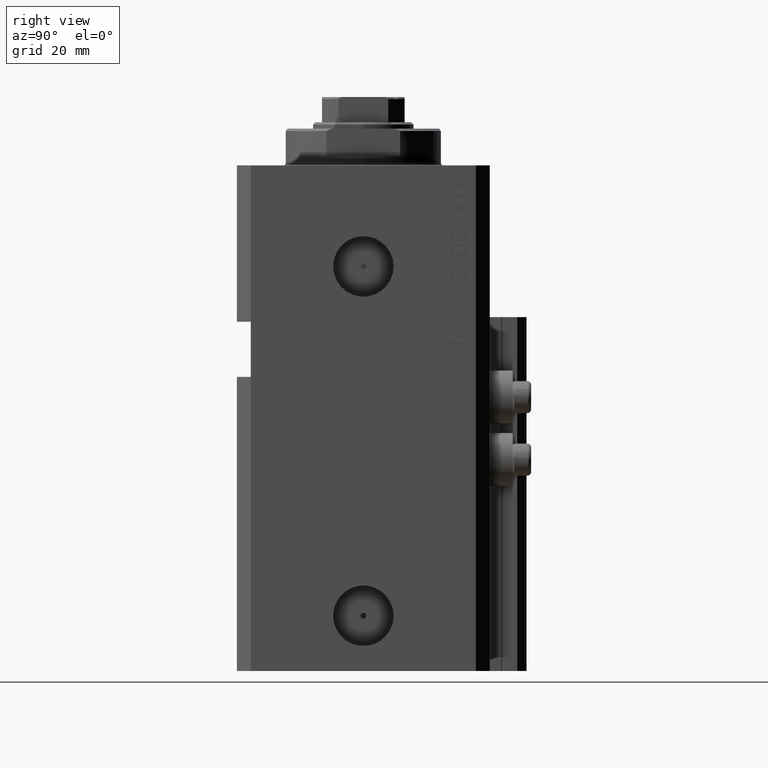
[diagram: clean part render]
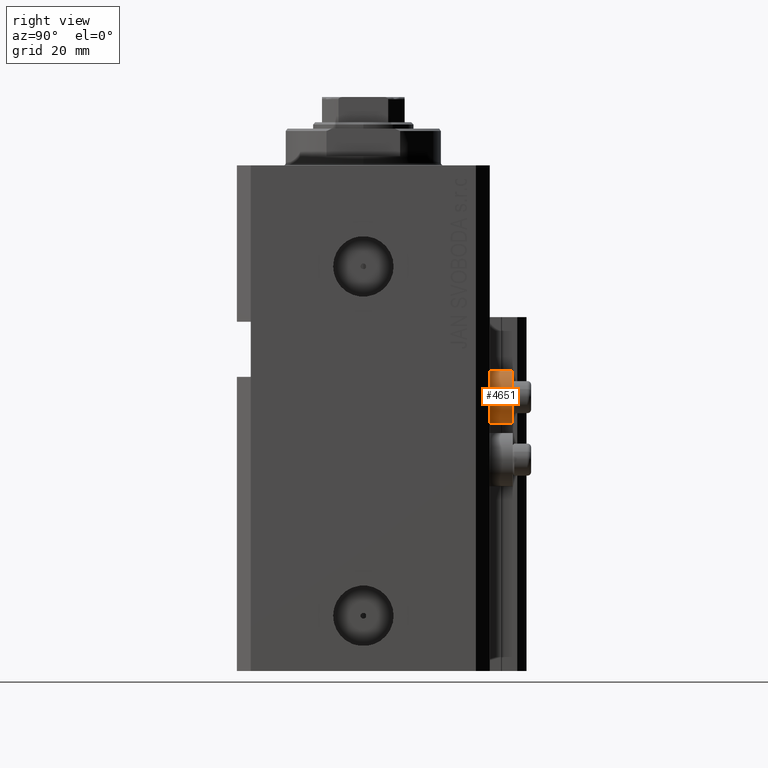
[diagram: same view with one face highlighted and labeled with its STEP entity id]
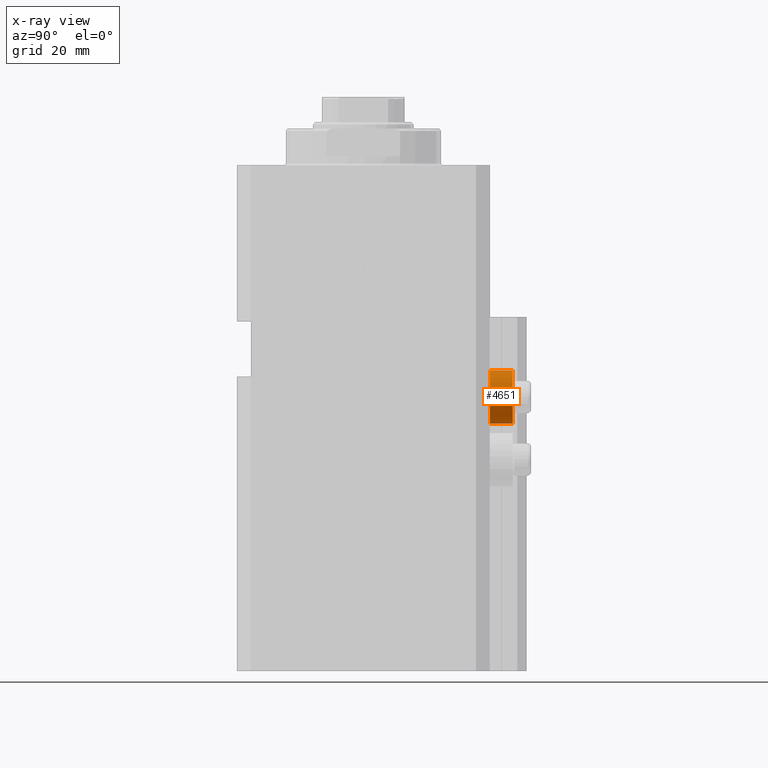
[diagram: x-ray of the same camera — body ghosted, the highlighted face saturated]
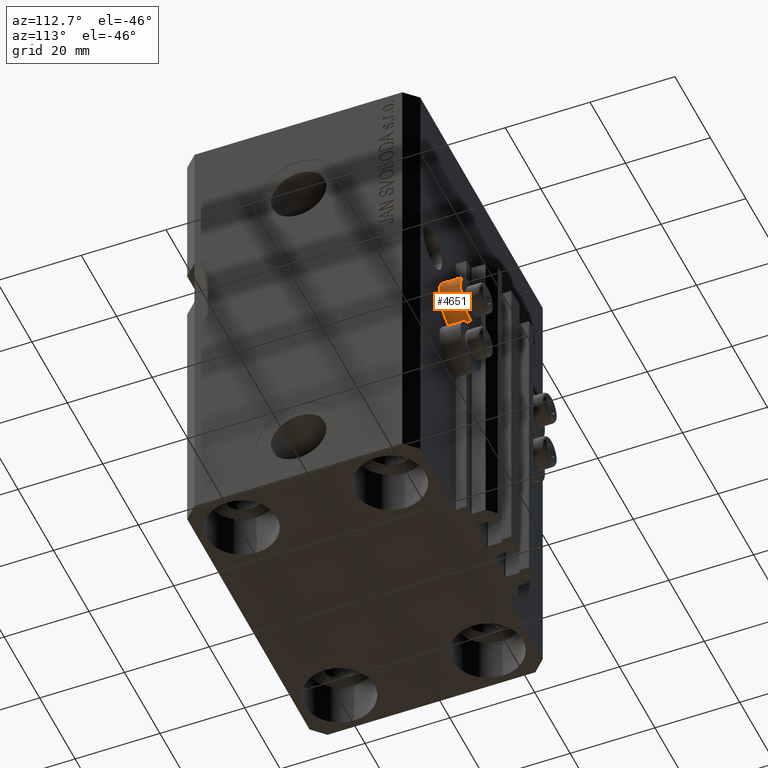
[diagram: same view with one face highlighted and labeled with its STEP entity id]
A machine part, right view. The second image highlights one B-rep face of the part: STEP entity #4651.
The next image is the same camera in x-ray: the body ghosted, the highlighted face saturated — about 0% of this face is hidden behind the body in this view.
A second angle (auxiliary view) of the same face is appended — the face is thin or edge-on in the first view.
In plain terms, the highlighted cylindrical surface (edge-blend (fillet) strip) has radius 5.8 mm, axis along (0, 1, 0).
Its self-contained STEP definition (entity closure, byte-faithful):
#9 = VERTEX_POINT ( 'NONE', #9403 ) ;
#1350 = CARTESIAN_POINT ( 'NONE',  ( 18.00000000000000355, 27.50000000000000355, -50.39999999999999858 ) ) ;
#2509 = CARTESIAN_POINT ( 'NONE',  ( 18.00000000000000355, 32.49999999996100541, -50.39999999999999858 ) ) ;
#3079 = LINE ( 'NONE', #17313, #29198 ) ;
#4651 = ADVANCED_FACE ( 'NONE', ( #38280 ), #5818, .T. ) ;
#5818 = CYLINDRICAL_SURFACE ( 'NONE', #24522, 5.799999999999999822 ) ;
#6079 = EDGE_CURVE ( 'NONE', #27946, #42063, #16747, .T. ) ;
#6981 = DIRECTION ( 'NONE',  ( 0.000000000000000000, 1.000000000000000000, 0.000000000000000000 ) ) ;
#9403 = CARTESIAN_POINT ( 'NONE',  ( 18.00000000000000355, 32.49999999996100541, -56.20000000000000284 ) ) ;
#9785 = ORIENTED_EDGE ( 'NONE', *, *, #34848, .F. ) ;
#10515 = DIRECTION ( 'NONE',  ( -0.000000000000000000, -1.000000000000000000, -0.000000000000000000 ) ) ;
#10516 = EDGE_CURVE ( 'NONE', #37584, #9, #3079, .T. ) ;
#11069 = ORIENTED_EDGE ( 'NONE', *, *, #10516, .T. ) ;
#12027 = AXIS2_PLACEMENT_3D ( 'NONE', #1350, #36656, #40451 ) ;
#12811 = CARTESIAN_POINT ( 'NONE',  ( 18.00000000000000355, 27.50000000000000355, -44.60000000000000142 ) ) ;
#13359 = EDGE_CURVE ( 'NONE', #9, #42063, #19530, .T. ) ;
#14603 = CARTESIAN_POINT ( 'NONE',  ( 18.00000000000000355, 27.50000000000000355, -56.20000000000000284 ) ) ;
#16747 = LINE ( 'NONE', #20294, #31350 ) ;
#17313 = CARTESIAN_POINT ( 'NONE',  ( 18.00000000000000355, 32.49999999996100541, -56.20000000000000284 ) ) ;
#19530 = CIRCLE ( 'NONE', #30093, 5.799999999999999822 ) ;
#19747 = ORIENTED_EDGE ( 'NONE', *, *, #6079, .F. ) ;
#20294 = CARTESIAN_POINT ( 'NONE',  ( 18.00000000000000355, 32.49999999996100541, -44.60000000000000142 ) ) ;
#21185 = CARTESIAN_POINT ( 'NONE',  ( 18.00000000000000355, 32.49999999996100541, -50.39999999999999858 ) ) ;
#22613 = CIRCLE ( 'NONE', #12027, 5.799999999999999822 ) ;
#23745 = EDGE_LOOP ( 'NONE', ( #9785, #11069, #39621, #19747 ) ) ;
#24522 = AXIS2_PLACEMENT_3D ( 'NONE', #2509, #6981, #39440 ) ;
#24958 = DIRECTION ( 'NONE',  ( 0.000000000000000000, 0.000000000000000000, 1.000000000000000000 ) ) ;
#26683 = DIRECTION ( 'NONE',  ( 0.000000000000000000, 1.000000000000000000, 0.000000000000000000 ) ) ;
#27946 = VERTEX_POINT ( 'NONE', #12811 ) ;
#29198 = VECTOR ( 'NONE', #46655, 1000.000000000000000 ) ;
#30093 = AXIS2_PLACEMENT_3D ( 'NONE', #21185, #10515, #24958 ) ;
#31350 = VECTOR ( 'NONE', #26683, 1000.000000000000000 ) ;
#34848 = EDGE_CURVE ( 'NONE', #37584, #27946, #22613, .T. ) ;
#36656 = DIRECTION ( 'NONE',  ( -0.000000000000000000, -1.000000000000000000, -0.000000000000000000 ) ) ;
#37584 = VERTEX_POINT ( 'NONE', #14603 ) ;
#38280 = FACE_OUTER_BOUND ( 'NONE', #23745, .T. ) ;
#39440 = DIRECTION ( 'NONE',  ( 0.000000000000000000, 0.000000000000000000, 1.000000000000000000 ) ) ;
#39621 = ORIENTED_EDGE ( 'NONE', *, *, #13359, .T. ) ;
#40451 = DIRECTION ( 'NONE',  ( 0.000000000000000000, 0.000000000000000000, 1.000000000000000000 ) ) ;
#42063 = VERTEX_POINT ( 'NONE', #44738 ) ;
#44738 = CARTESIAN_POINT ( 'NONE',  ( 18.00000000000000355, 32.49999999996100541, -44.60000000000000142 ) ) ;
#46655 = DIRECTION ( 'NONE',  ( 0.000000000000000000, 1.000000000000000000, 0.000000000000000000 ) ) ;